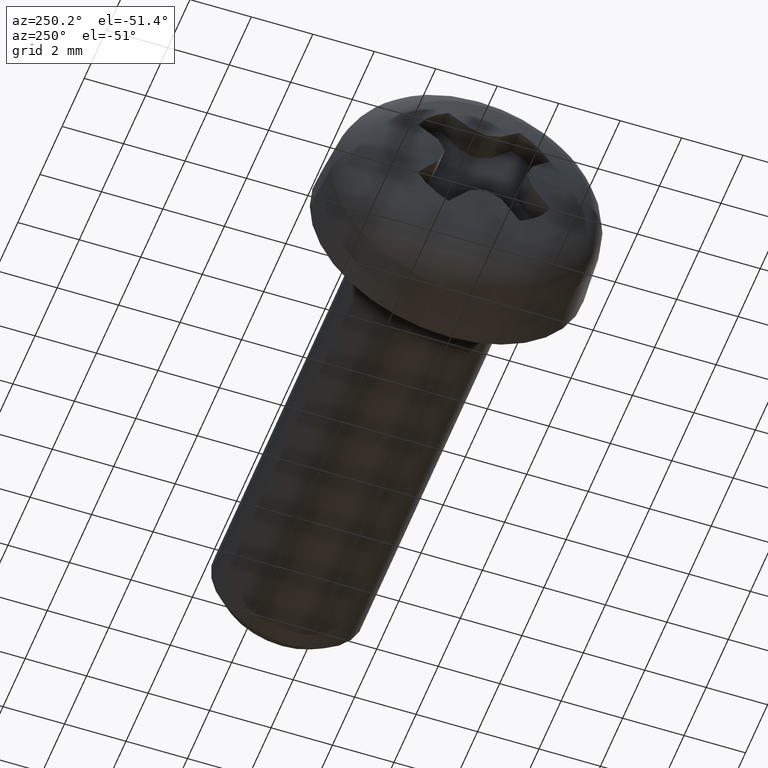
[diagram: clean part render]
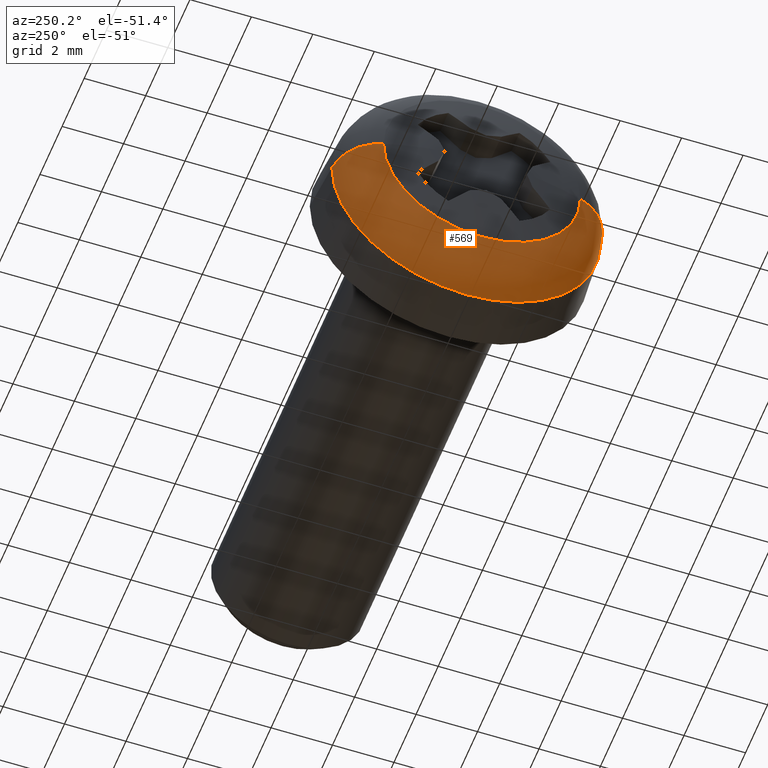
[diagram: same view with one face highlighted and labeled with its STEP entity id]
A machine part, auxiliary view. The second image highlights one B-rep face of the part: STEP entity #569.
In plain terms, the highlighted toroidal blend (fillet) surface has major radius 2.7782 mm and minor (blend) radius 1.6 mm.
Its self-contained STEP definition (entity closure, byte-faithful):
#1 = CARTESIAN_POINT ( 'NONE',  ( -3.063903015048162100, -3.205643002259138500, 3.925780441946566000E-016 ) ) ;
#10 = CIRCLE ( 'NONE', #669, 4.373513440437846200 ) ;
#22 = AXIS2_PLACEMENT_3D ( 'NONE', #407, #607, #1112 ) ;
#31 = CARTESIAN_POINT ( 'NONE',  ( -1.644733406041990700, 4.373513440437846200, 0.0000000000000000000 ) ) ;
#56 = EDGE_LOOP ( 'NONE', ( #344, #470, #969, #167 ) ) ;
#137 = AXIS2_PLACEMENT_3D ( 'NONE', #427, #1231, #538 ) ;
#167 = ORIENTED_EDGE ( 'NONE', *, *, #1057, .F. ) ;
#261 = DIRECTION ( 'NONE',  ( -1.000000000000000000, 0.0000000000000000000, 0.0000000000000000000 ) ) ;
#292 = FACE_OUTER_BOUND ( 'NONE', #56, .T. ) ;
#297 = CIRCLE ( 'NONE', #22, 1.600000000015049400 ) ;
#320 = VERTEX_POINT ( 'NONE', #1 ) ;
#344 = ORIENTED_EDGE ( 'NONE', *, *, #376, .F. ) ;
#351 = CARTESIAN_POINT ( 'NONE',  ( -1.522049279690289600, 2.778223935304223500, 0.0000000000000000000 ) ) ;
#376 = EDGE_CURVE ( 'NONE', #320, #944, #297, .T. ) ;
#407 = CARTESIAN_POINT ( 'NONE',  ( -1.522049279690288200, -2.778223935304224400, 3.402343049684881400E-016 ) ) ;
#427 = CARTESIAN_POINT ( 'NONE',  ( -1.522049279690288900, -4.336808689942017700E-016, 0.0000000000000000000 ) ) ;
#465 = VERTEX_POINT ( 'NONE', #31 ) ;
#470 = ORIENTED_EDGE ( 'NONE', *, *, #716, .T. ) ;
#515 = CARTESIAN_POINT ( 'NONE',  ( -1.644733406041989600, -4.075939501723478800E-016, 0.0000000000000000000 ) ) ;
#538 = DIRECTION ( 'NONE',  ( -2.478176394271778600E-016, 1.000000000000000000, 0.0000000000000000000 ) ) ;
#548 = VERTEX_POINT ( 'NONE', #919 ) ;
#569 = ADVANCED_FACE ( 'NONE', ( #292 ), #978, .T. ) ;
#607 = DIRECTION ( 'NONE',  ( -3.034890788967462600E-032, 1.224646799147353200E-016, 1.000000000000000000 ) ) ;
#610 = DIRECTION ( 'NONE',  ( -2.479018727737033300E-016, 1.000000000000000000, 0.0000000000000000000 ) ) ;
#636 = DIRECTION ( 'NONE',  ( -2.705734036424346800E-016, 1.000000000000000000, 0.0000000000000000000 ) ) ;
#650 = CIRCLE ( 'NONE', #734, 3.205643002276123100 ) ;
#669 = AXIS2_PLACEMENT_3D ( 'NONE', #515, #1210, #610 ) ;
#716 = EDGE_CURVE ( 'NONE', #320, #548, #650, .T. ) ;
#734 = AXIS2_PLACEMENT_3D ( 'NONE', #1046, #1234, #636 ) ;
#778 = CARTESIAN_POINT ( 'NONE',  ( -1.644733406041988500, -4.373513440437846200, 5.433459916008446800E-016 ) ) ;
#844 = EDGE_CURVE ( 'NONE', #548, #465, #1071, .T. ) ;
#919 = CARTESIAN_POINT ( 'NONE',  ( -3.063903015048163000, 3.205643002276122200, 0.0000000000000000000 ) ) ;
#944 = VERTEX_POINT ( 'NONE', #778 ) ;
#949 = DIRECTION ( 'NONE',  ( -0.0000000000000000000, 0.0000000000000000000, -1.000000000000000000 ) ) ;
#969 = ORIENTED_EDGE ( 'NONE', *, *, #844, .T. ) ;
#978 = TOROIDAL_SURFACE ( 'NONE', #137, 2.778223935304224000, 1.600000000015049400 ) ;
#1046 = CARTESIAN_POINT ( 'NONE',  ( -3.063903015048163000, -7.592892126230487900E-016, 0.0000000000000000000 ) ) ;
#1057 = EDGE_CURVE ( 'NONE', #944, #465, #10, .T. ) ;
#1071 = CIRCLE ( 'NONE', #1197, 1.600000000015049200 ) ;
#1112 = DIRECTION ( 'NONE',  ( 0.0000000000000000000, -1.000000000000000000, 1.224646799147353200E-016 ) ) ;
#1197 = AXIS2_PLACEMENT_3D ( 'NONE', #351, #949, #261 ) ;
#1210 = DIRECTION ( 'NONE',  ( 1.000000000000000000, 2.478176394271778600E-016, -0.0000000000000000000 ) ) ;
#1231 = DIRECTION ( 'NONE',  ( 1.000000000000000000, 2.478176394271778600E-016, -0.0000000000000000000 ) ) ;
#1234 = DIRECTION ( 'NONE',  ( 1.000000000000000000, 2.478176394271778600E-016, -0.0000000000000000000 ) ) ;